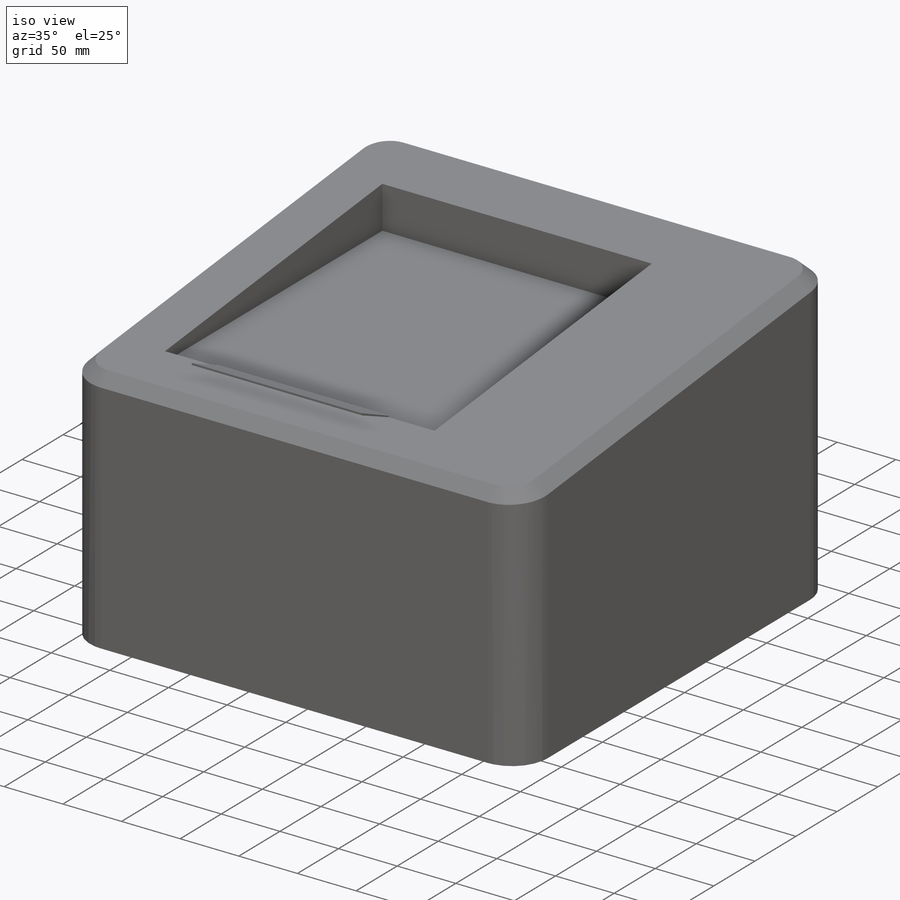
[diagram: iso view]
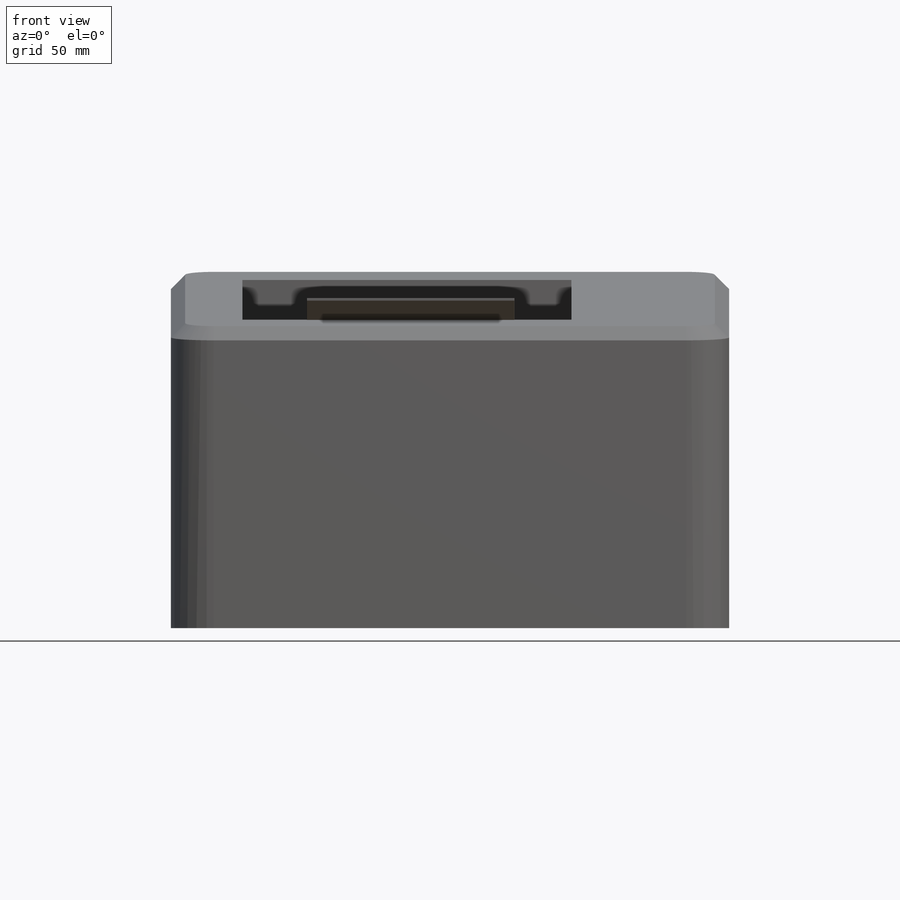
[diagram: front view]
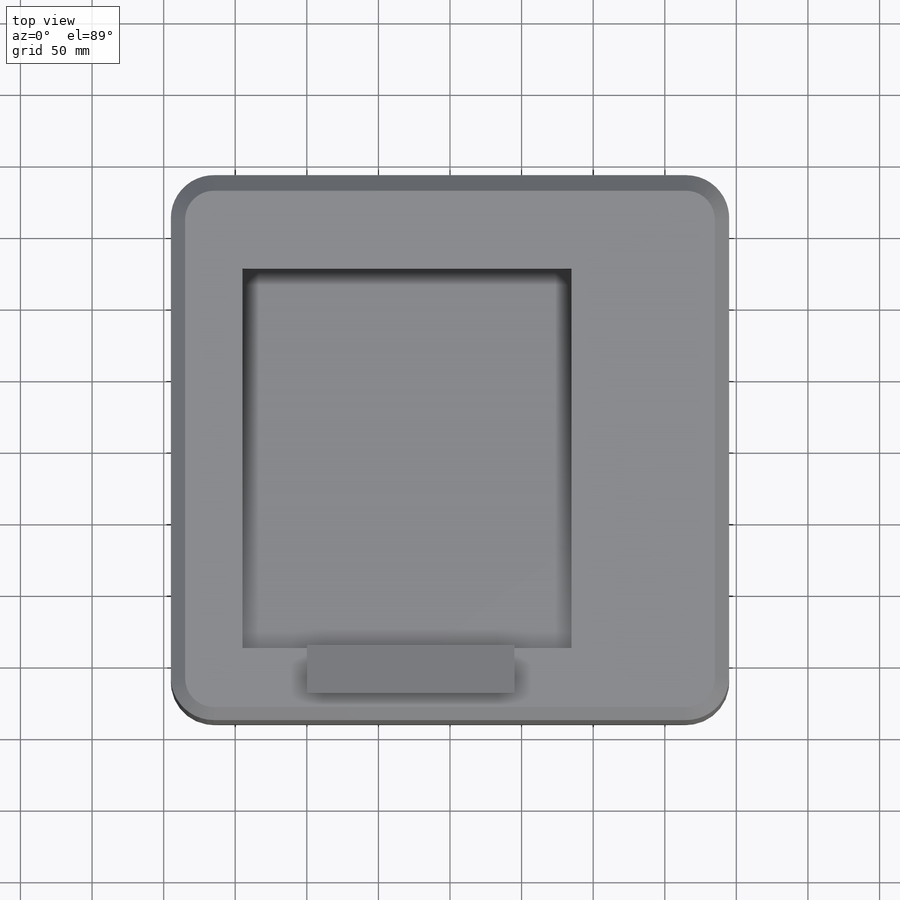
[diagram: top view]
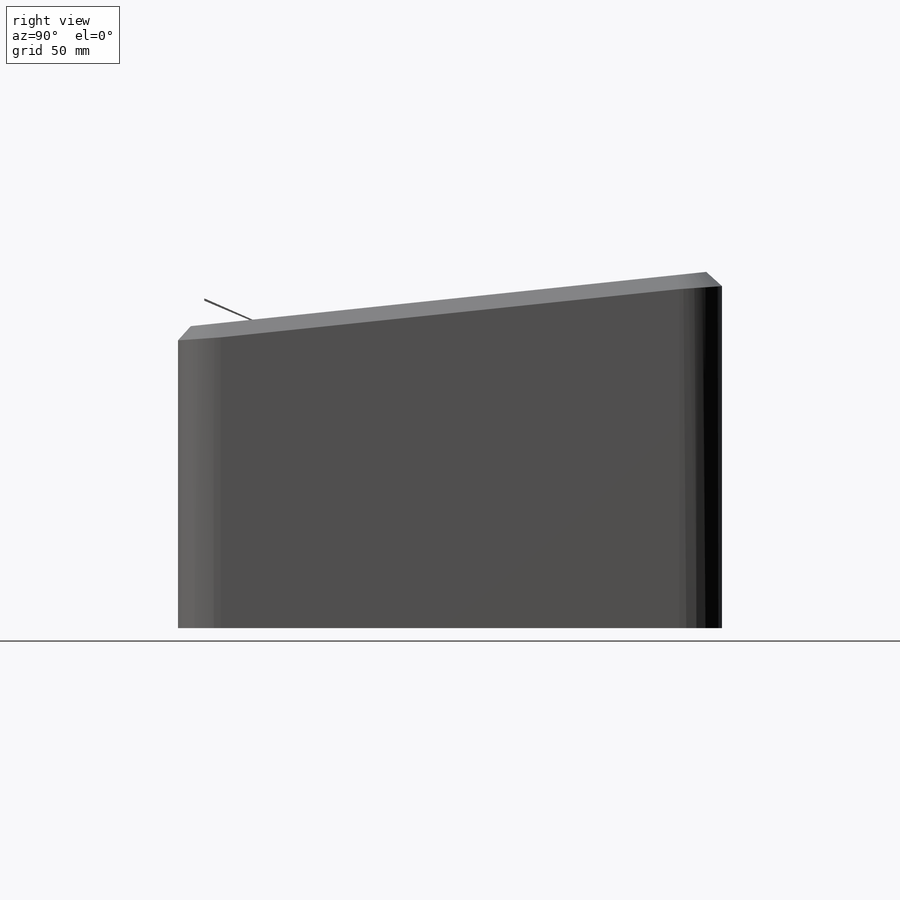
[diagram: right view]
SOLIDWORKS PART (.sldprt)
format: sldprt  version: not decoded by parser v0  size: 258,560 bytes
history: native  units: mm
features: plane x4, sketch x4, extrude x2, cut_extrude x2, material x1, fillet x1, chamfer x1 (+9 scaffold rows collapsed)
feature tree (24):
  scaffold x9  (default folders/planes/origin — collapsed)
  material  "材质 <未指定>"
  plane  "前视基准面"
  plane  "上视基准面"
  plane  "右视基准面"
  sketch  "草图1"  dims[D1=380.0mm]
  extrude  "拉伸1"  Depth=250mm
  sketch  "草图2"  dims[D1=40.0mm]
  cut_extrude  "拉伸2"  Depth=250mm
  plane  "基准面1"  Offset=250mm
  sketch  "草图3"  dims[D1=270.0mm]
  cut_extrude  "拉伸3"  Depth=43mm
  fillet  "圆角1"  Radius=30mm
  chamfer  "倒角1"  Distance=10mm Angle=45deg
  sketch  "草图4"
  extrude  "拉伸4"  Depth=45mm
decode coverage: 9 of 10 modeling features carry decoded parameters
note: suppression state not decoded; provenance and decode notes live in map.json
